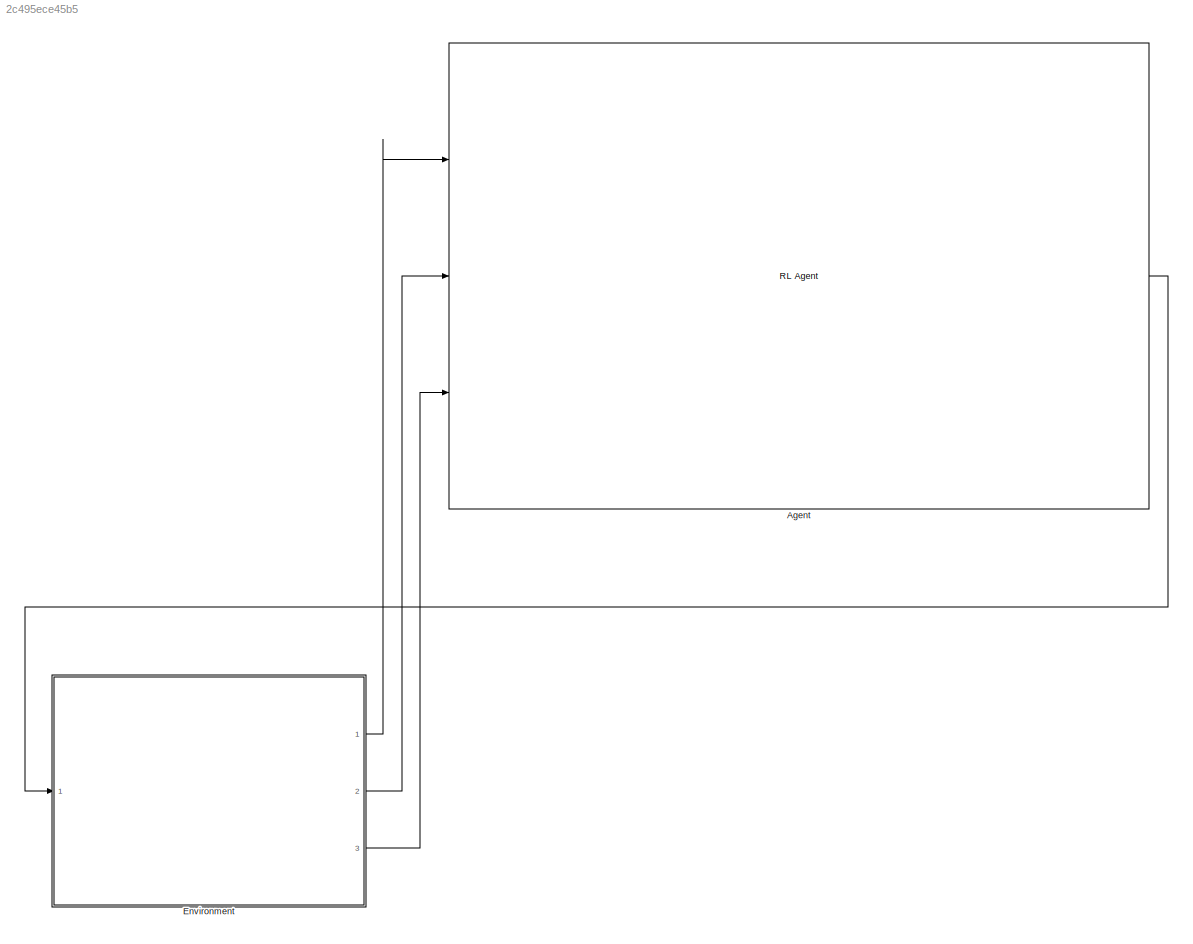
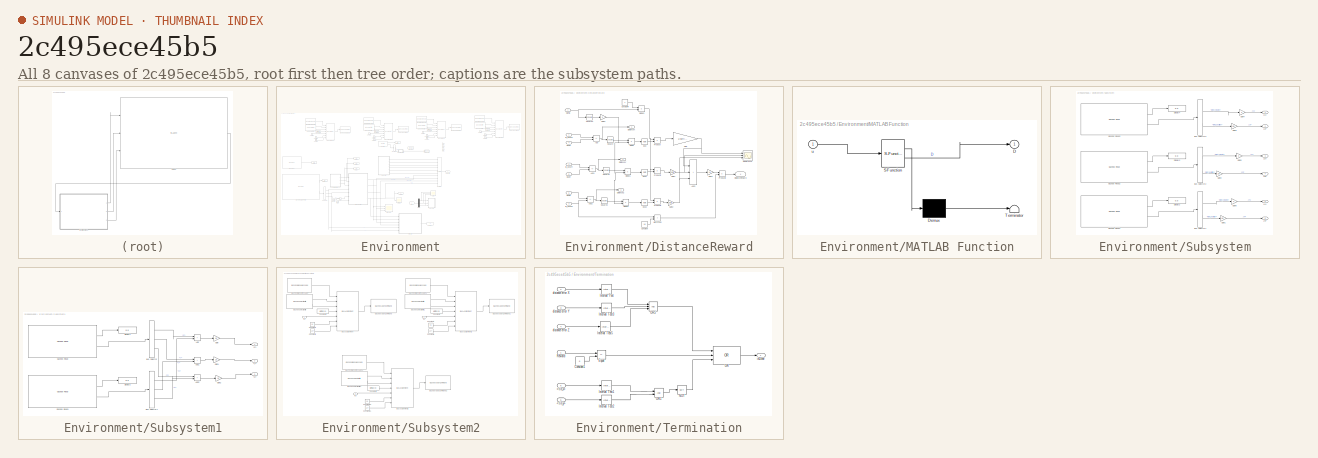
[diagram: thumbnail index - all 8 canvases of the model, root first then tree order]
MODEL slx_2c495ece45b5
KIND model
CONFIG AbsTol = auto
CONFIG EnableMultiTasking = off
CONFIG FixedStep = auto
CONFIG MaxStep = auto
CONFIG MinStep = auto
CONFIG RelTol = 1e-3
CONFIG SampleTimeConstraint = Unconstrained
CONFIG SolverName = VariableStepAuto
CONFIG StartTime = 0.0
CONFIG StopTime = inf
BLOCK [Reference] Agent  REF=rllib/RL Agent
  Ports = [3, 1]
  SourceBlock = rllib/RL Agent
  SourceProductBaseCode = RL
  SourceType = RL Agent
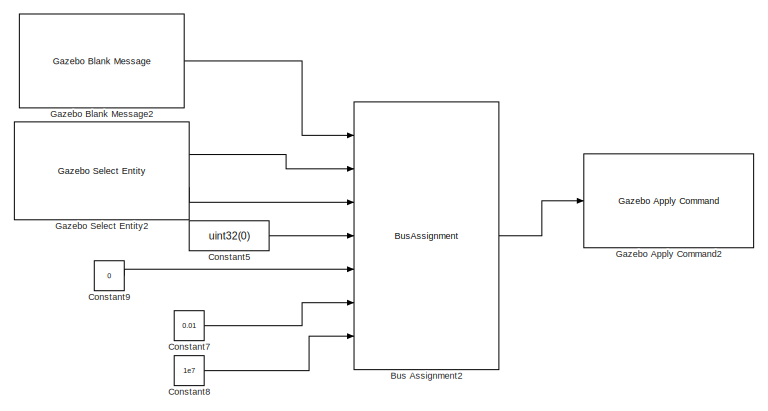
[diagram: Environment - part 1/7, top right region]
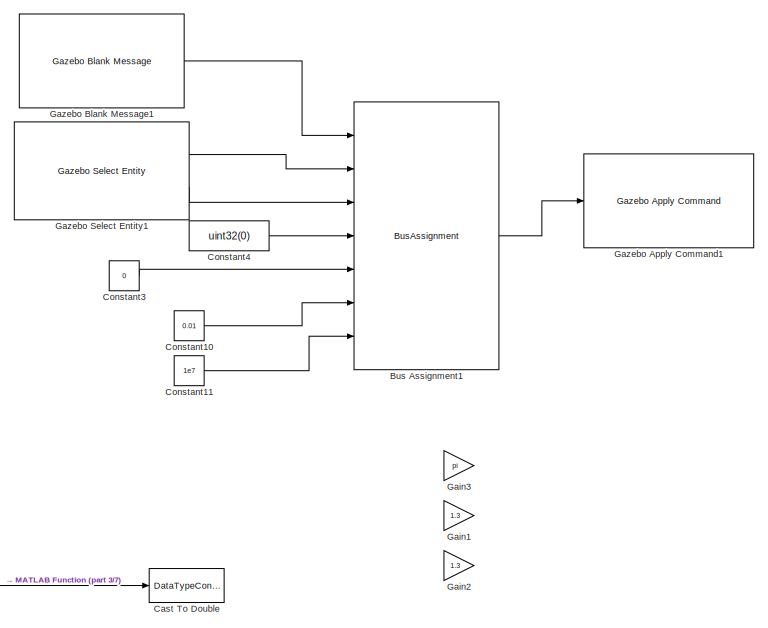
[diagram: Environment - part 2/7, top center region]
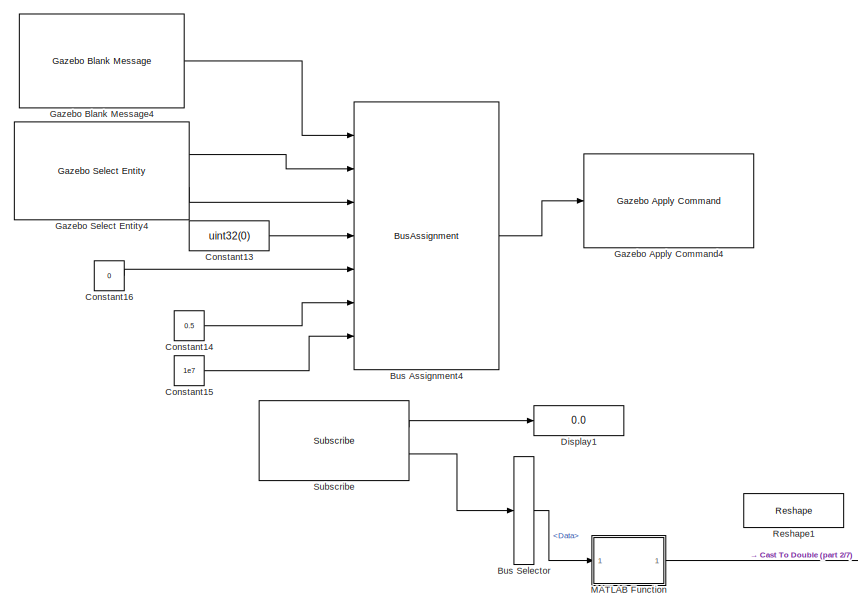
[diagram: Environment - part 3/7, top center region]
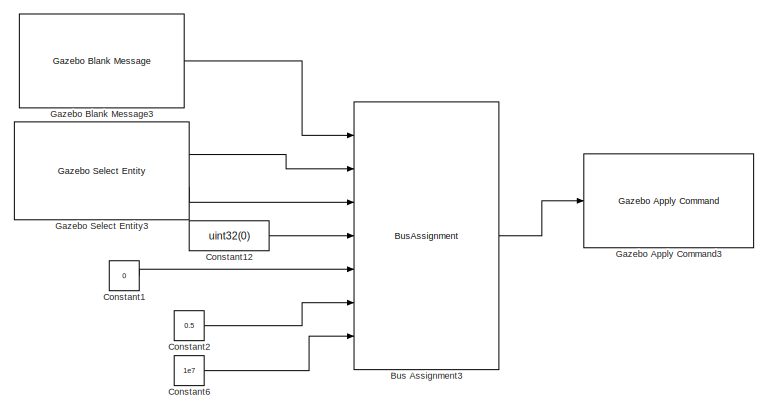
[diagram: Environment - part 4/7, top left region]
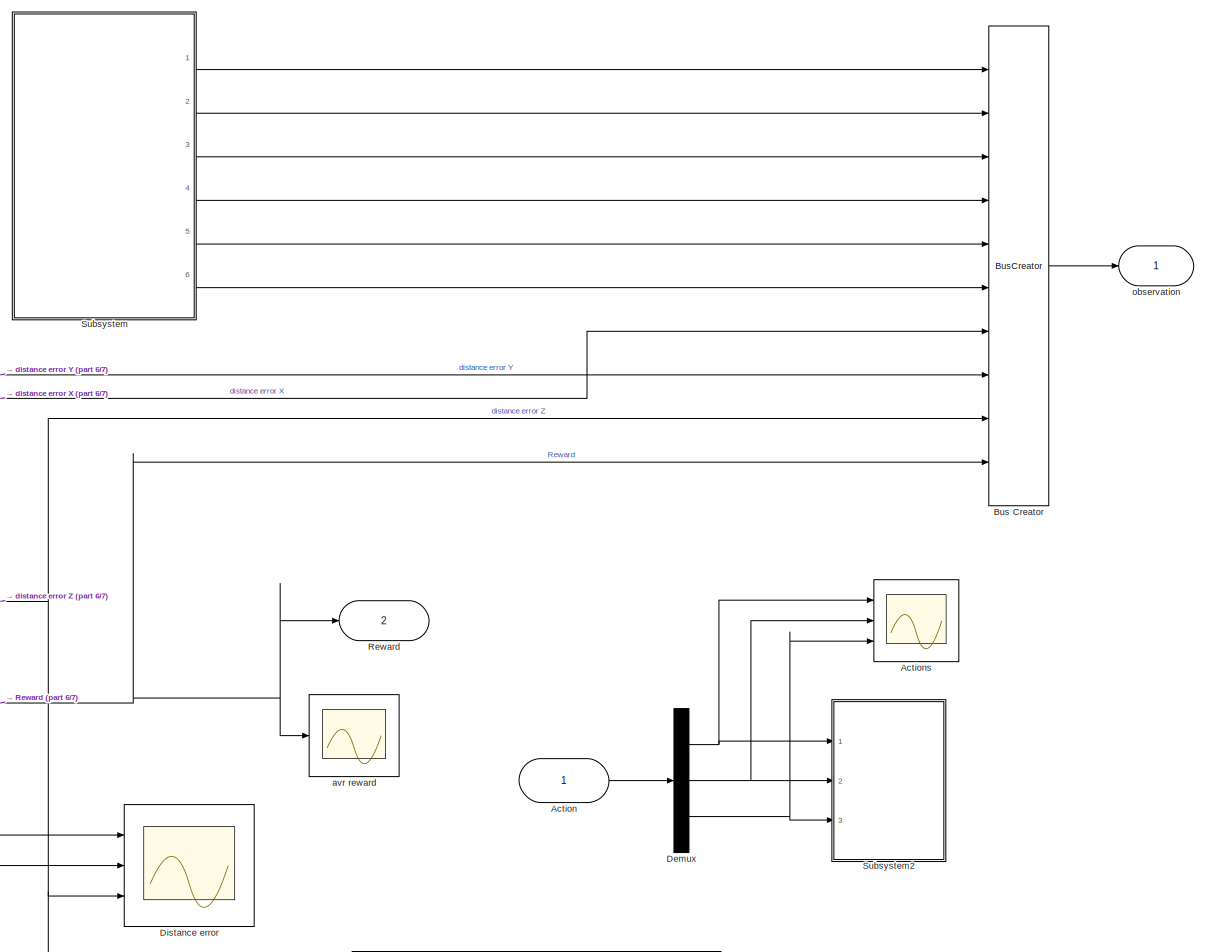
[diagram: Environment - part 5/7, central region]
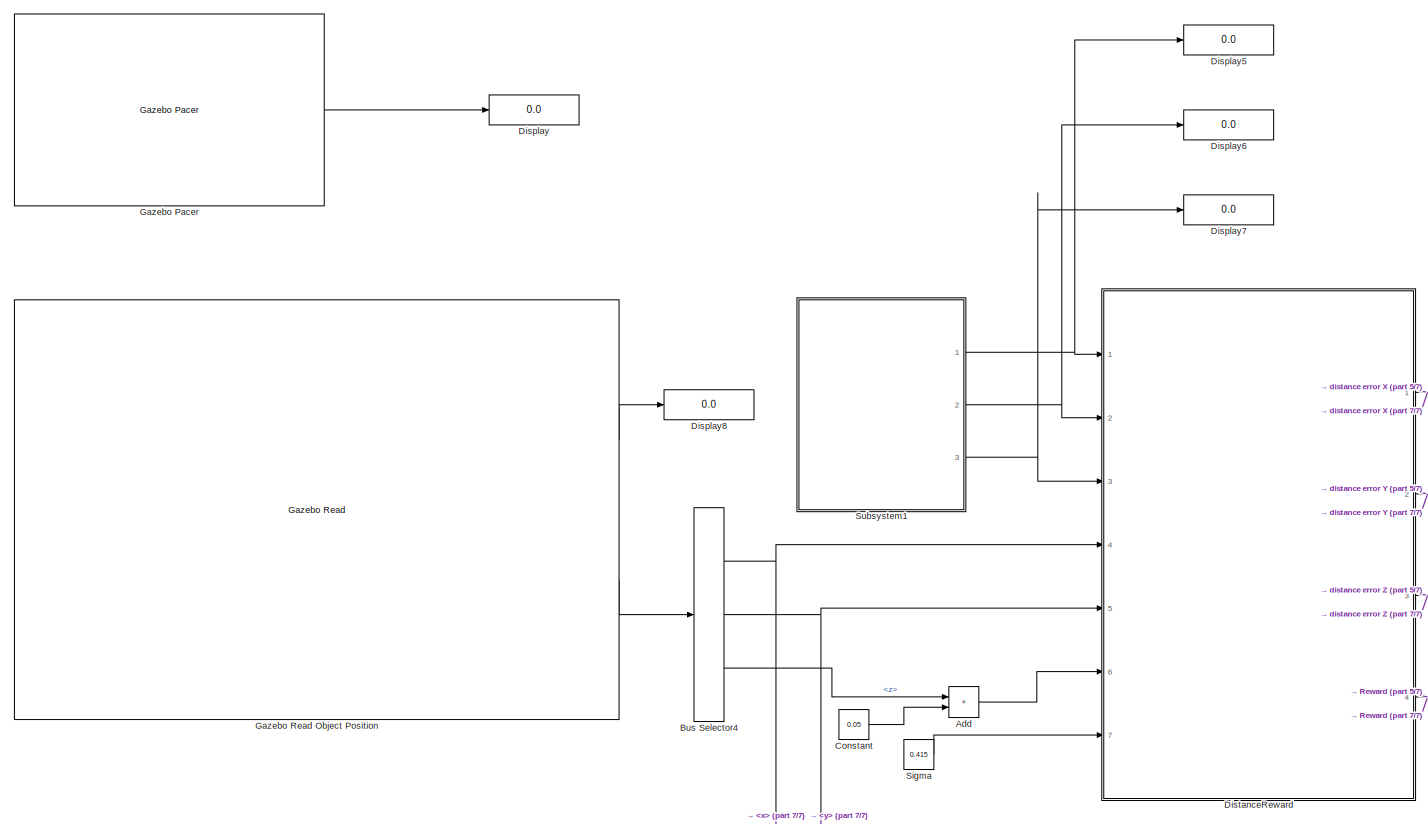
[diagram: Environment - part 6/7, middle left region]
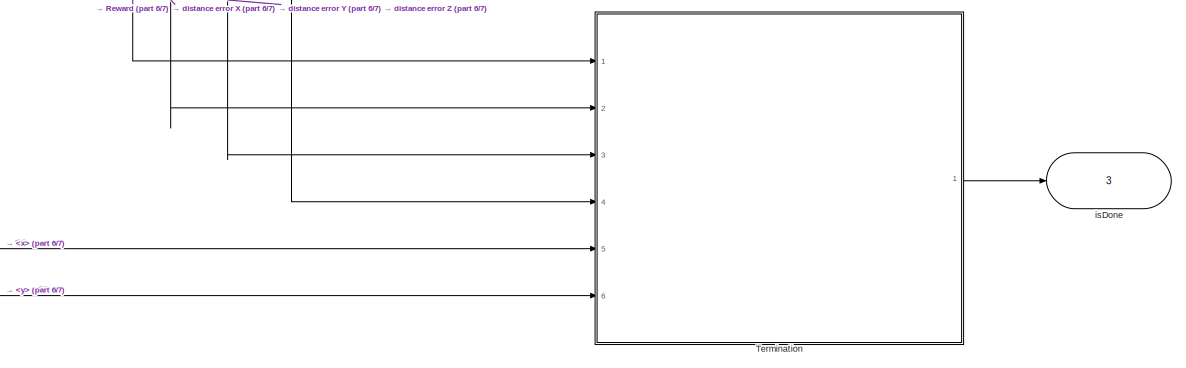
[diagram: Environment - part 7/7, bottom center region]
BLOCK [SubSystem] Environment
  Ports = [1, 3]
  RequestExecContextInheritance = off
BLOCK [Inport] Environment/Action
BLOCK [Scope] Environment/Actions
  Floating = off
  NumInputPorts = 3
  Ports = [3]
  ScopeSpecificationString = Simulink.scopes.TimeScopeBlockCfg('CurrentConfiguration', extmgr.ConfigurationSet(extmgr.Configuration('Core','General UI',true),extmgr.Configuration('Core','Source UI',true),extmgr.Configuration('Sources','WiredSimulink',true,'DataLoggingVariableName','ScopeData1'),extmgr.Configuration('Visuals','Time Domain',true,'SerializedDisplays',{struct('MinYLimReal','-3','MaxYLimReal','3','YLabelReal','','...<+1492ch>
BLOCK [Sum] Environment/Add
  IconShape = rectangular
  Ports = [2, 1]
BLOCK [BusAssignment] Environment/Bus Assignment1
  AssignedSignals = model_name,joint_name,index,position,duration.seconds,duration.nano_seconds
  Ports = [7, 1]
BLOCK [BusAssignment] Environment/Bus Assignment2
  AssignedSignals = model_name,joint_name,index,position,duration.seconds,duration.nano_seconds
  Ports = [7, 1]
BLOCK [BusAssignment] Environment/Bus Assignment3
  AssignedSignals = model_name,joint_name,index,velocity,duration.seconds,duration.nano_seconds
  Ports = [7, 1]
BLOCK [BusAssignment] Environment/Bus Assignment4
  AssignedSignals = model_name,joint_name,index,velocity,duration.seconds,duration.nano_seconds
  Ports = [7, 1]
BLOCK [BusCreator] Environment/Bus Creator
  DisplayOption = bar
  InheritFromInputs = on
  Inputs = 10
  Ports = [10, 1]
BLOCK [BusSelector] Environment/Bus Selector
  Commented = on
  OutputSignals = Data
  Ports = [1, 1]
BLOCK [BusSelector] Environment/Bus Selector4
  OutputSignals = position.x,position.y,position.z
  Ports = [1, 3]
BLOCK [DataTypeConversion] Environment/Cast To Double
  Commented = on
  OutDataTypeStr = double
  RndMeth = Floor
  SaturateOnIntegerOverflow = off
BLOCK [Constant] Environment/Constant
  Value = 0.05
BLOCK [Constant] Environment/Constant1
  Value = 0
BLOCK [Constant] Environment/Constant10
  Value = 0.01
BLOCK [Constant] Environment/Constant11
  Value = 1e7
BLOCK [Constant] Environment/Constant12
  Value = uint32(0)
BLOCK [Constant] Environment/Constant13
  Value = uint32(0)
BLOCK [Constant] Environment/Constant14
  Value = 0.5
BLOCK [Constant] Environment/Constant15
  Value = 1e7
BLOCK [Constant] Environment/Constant16
  Value = 0
BLOCK [Constant] Environment/Constant2
  Value = 0.5
BLOCK [Constant] Environment/Constant3
  Value = 0
BLOCK [Constant] Environment/Constant4
  Value = uint32(0)
BLOCK [Constant] Environment/Constant5
  Value = uint32(0)
BLOCK [Constant] Environment/Constant6
  Value = 1e7
BLOCK [Constant] Environment/Constant7
  Value = 0.01
BLOCK [Constant] Environment/Constant8
  Value = 1e7
BLOCK [Constant] Environment/Constant9
  Value = 0
BLOCK [Demux] Environment/Demux
  Outputs = 3
  Ports = [1, 3]
BLOCK [Display] Environment/Display
  Decimation = 1
  Ports = [1]
BLOCK [Display] Environment/Display1
  Commented = on
  Decimation = 1
  Ports = [1]
BLOCK [Display] Environment/Display5
  Decimation = 1
  Ports = [1]
BLOCK [Display] Environment/Display6
  Decimation = 1
  Ports = [1]
BLOCK [Display] Environment/Display7
  Decimation = 1
  Ports = [1]
BLOCK [Display] Environment/Display8
  Decimation = 1
  Ports = [1]
BLOCK [Scope] Environment/Distance error
  Floating = off
  NumInputPorts = 3
  Ports = [3]
  ScopeSpecificationString = Simulink.scopes.TimeScopeBlockCfg('CurrentConfiguration', extmgr.ConfigurationSet(extmgr.Configuration('Core','General UI',true),extmgr.Configuration('Core','Source UI',true),extmgr.Configuration('Sources','WiredSimulink',true),extmgr.Configuration('Visuals','Time Domain',true,'SerializedDisplays',{struct('MinYLimReal','-1.3','MaxYLimReal','1.2','YLabelReal','','MinYLimMag','0.00000','MaxYLimMag',...<+1374ch>
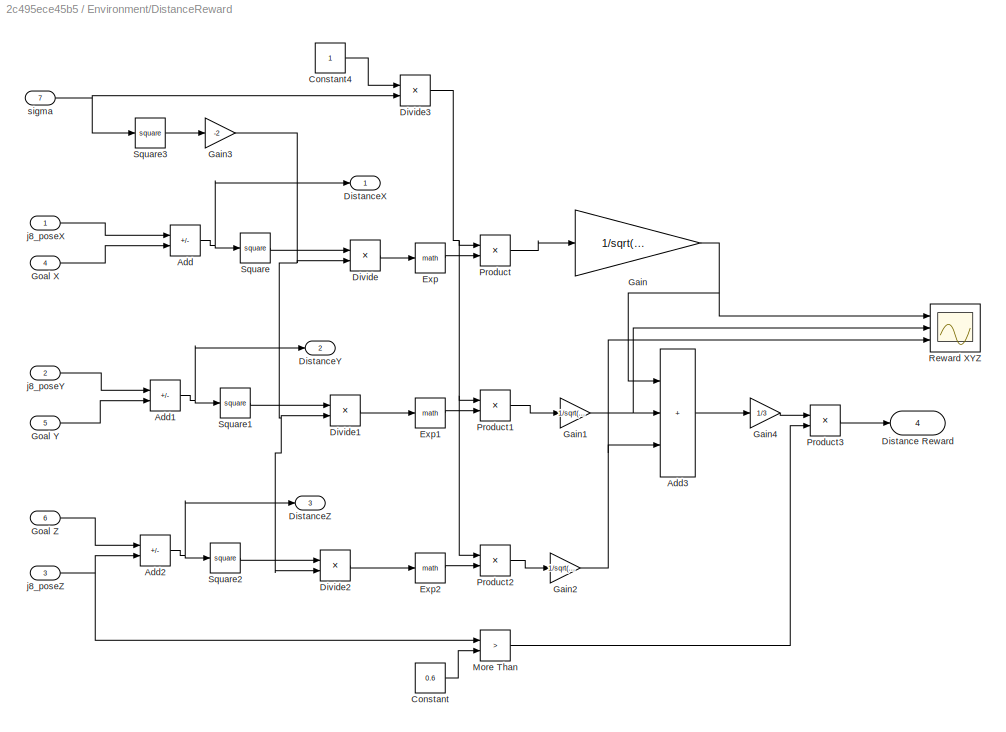
BLOCK [SubSystem] Environment/DistanceReward
  Ports = [7, 4]
  RequestExecContextInheritance = off
BLOCK [Sum] Environment/DistanceReward/Add
  IconShape = rectangular
  Inputs = +-
  Ports = [2, 1]
BLOCK [Sum] Environment/DistanceReward/Add1
  IconShape = rectangular
  Inputs = +-
  Ports = [2, 1]
BLOCK [Sum] Environment/DistanceReward/Add2
  IconShape = rectangular
  Inputs = +-
  Ports = [2, 1]
BLOCK [Sum] Environment/DistanceReward/Add3
  IconShape = rectangular
  Inputs = +++
  Ports = [3, 1]
BLOCK [Constant] Environment/DistanceReward/Constant
  Value = 0.6
BLOCK [Constant] Environment/DistanceReward/Constant4
BLOCK [Outport] Environment/DistanceReward/Distance Reward
  Port = 4
BLOCK [Outport] Environment/DistanceReward/DistanceX
BLOCK [Outport] Environment/DistanceReward/DistanceY
  Port = 2
BLOCK [Outport] Environment/DistanceReward/DistanceZ
  Port = 3
BLOCK [Product] Environment/DistanceReward/Divide
  Inputs = */
  Ports = [2, 1]
BLOCK [Product] Environment/DistanceReward/Divide1
  Inputs = */
  Ports = [2, 1]
BLOCK [Product] Environment/DistanceReward/Divide2
  Inputs = */
  Ports = [2, 1]
BLOCK [Product] Environment/DistanceReward/Divide3
  Inputs = */
  Ports = [2, 1]
BLOCK [Math] Environment/DistanceReward/Exp
  Ports = [1, 1]
BLOCK [Math] Environment/DistanceReward/Exp1
  Ports = [1, 1]
BLOCK [Math] Environment/DistanceReward/Exp2
  Ports = [1, 1]
BLOCK [Gain] Environment/DistanceReward/Gain
  Gain = 1/sqrt(2*pi)
BLOCK [Gain] Environment/DistanceReward/Gain1
  Gain = 1/sqrt(2*pi)
BLOCK [Gain] Environment/DistanceReward/Gain2
  Gain = 1/sqrt(2*pi)
BLOCK [Gain] Environment/DistanceReward/Gain3
  Gain = -2
BLOCK [Gain] Environment/DistanceReward/Gain4
  Gain = 1/3
BLOCK [Inport] Environment/DistanceReward/Goal X
  Port = 4
BLOCK [Inport] Environment/DistanceReward/Goal Y
  Port = 5
BLOCK [Inport] Environment/DistanceReward/Goal Z
  Port = 6
BLOCK [RelationalOperator] Environment/DistanceReward/More Than
  InputSameDT = off
  Operator = >
  OutDataTypeStr = boolean
  Ports = [2, 1]
  RndMeth = Simplest
BLOCK [Product] Environment/DistanceReward/Product
  Ports = [2, 1]
BLOCK [Product] Environment/DistanceReward/Product1
  Ports = [2, 1]
BLOCK [Product] Environment/DistanceReward/Product2
  Ports = [2, 1]
BLOCK [Product] Environment/DistanceReward/Product3
  Ports = [2, 1]
BLOCK [Scope] Environment/DistanceReward/Reward XYZ
  Floating = off
  NumInputPorts = 3
  Ports = [3]
  ScopeSpecificationString = Simulink.scopes.TimeScopeBlockCfg('CurrentConfiguration', extmgr.ConfigurationSet(extmgr.Configuration('Core','General UI',true),extmgr.Configuration('Core','Source UI',true),extmgr.Configuration('Sources','WiredSimulink',true,'DataLoggingVariableName','ScopeData1'),extmgr.Configuration('Visuals','Time Domain',true,'SerializedDisplays',{struct('MinYLimReal','0','MaxYLimReal','1.1','YLabelReal','',...<+1386ch>
BLOCK [Math] Environment/DistanceReward/Square
  Operator = square
  Ports = [1, 1]
BLOCK [Math] Environment/DistanceReward/Square1
  Operator = square
  Ports = [1, 1]
BLOCK [Math] Environment/DistanceReward/Square2
  Operator = square
  Ports = [1, 1]
BLOCK [Math] Environment/DistanceReward/Square3
  Operator = square
  Ports = [1, 1]
BLOCK [Inport] Environment/DistanceReward/j8_poseX
BLOCK [Inport] Environment/DistanceReward/j8_poseY
  Port = 2
BLOCK [Inport] Environment/DistanceReward/j8_poseZ
  Port = 3
BLOCK [Inport] Environment/DistanceReward/sigma
  Port = 7
BLOCK [Gain] Environment/Gain1
  Commented = on
  Gain = 1.3
BLOCK [Gain] Environment/Gain2
  Commented = on
  Gain = 1.3
BLOCK [Gain] Environment/Gain3
  Commented = on
  Gain = pi
BLOCK [Reference] Environment/Gazebo Apply Command1  REF=robotgazebolib/Gazebo Apply Command
  Ports = [1]
  SourceBlock = robotgazebolib/Gazebo Apply Command
  SourceProductBaseCode = RO
  SourceType = Gazebo Apply Command
BLOCK [Reference] Environment/Gazebo Apply Command2  REF=robotgazebolib/Gazebo Apply Command
  Ports = [1]
  SourceBlock = robotgazebolib/Gazebo Apply Command
  SourceProductBaseCode = RO
  SourceType = Gazebo Apply Command
BLOCK [Reference] Environment/Gazebo Apply Command3  REF=robotgazebolib/Gazebo Apply Command
  Ports = [1]
  SourceBlock = robotgazebolib/Gazebo Apply Command
  SourceProductBaseCode = RO
  SourceType = Gazebo Apply Command
BLOCK [Reference] Environment/Gazebo Apply Command4  REF=robotgazebolib/Gazebo Apply Command
  Ports = [1]
  SourceBlock = robotgazebolib/Gazebo Apply Command
  SourceProductBaseCode = RO
  SourceType = Gazebo Apply Command
BLOCK [Reference] Environment/Gazebo Blank Message1  REF=robotgazebolib/Gazebo Blank Message
  Ports = [0, 1]
  SourceBlock = robotgazebolib/Gazebo Blank Message
  SourceProductBaseCode = RO
  SourceType = Gazebo Blank Message
BLOCK [Reference] Environment/Gazebo Blank Message2  REF=robotgazebolib/Gazebo Blank Message
  Ports = [0, 1]
  SourceBlock = robotgazebolib/Gazebo Blank Message
  SourceProductBaseCode = RO
  SourceType = Gazebo Blank Message
BLOCK [Reference] Environment/Gazebo Blank Message3  REF=robotgazebolib/Gazebo Blank Message
  Ports = [0, 1]
  SourceBlock = robotgazebolib/Gazebo Blank Message
  SourceProductBaseCode = RO
  SourceType = Gazebo Blank Message
BLOCK [Reference] Environment/Gazebo Blank Message4  REF=robotgazebolib/Gazebo Blank Message
  Ports = [0, 1]
  SourceBlock = robotgazebolib/Gazebo Blank Message
  SourceProductBaseCode = RO
  SourceType = Gazebo Blank Message
BLOCK [Reference] Environment/Gazebo Pacer  REF=robotgazebolib/Gazebo Pacer
  Ports = [0, 1]
  SourceBlock = robotgazebolib/Gazebo Pacer
  SourceProductBaseCode = RO
  SourceType = Gazebo Pacer
BLOCK [Reference] Environment/Gazebo Read Object Position  REF=robotgazebolib/Gazebo Read
  Ports = [0, 2]
  SourceBlock = robotgazebolib/Gazebo Read
  SourceProductBaseCode = RO
  SourceType = Gazebo Read
BLOCK [Reference] Environment/Gazebo Select Entity1  REF=robotgazebolib/Gazebo Select Entity
  Ports = [0, 2]
  SourceBlock = robotgazebolib/Gazebo Select Entity
  SourceProductBaseCode = RO
  SourceType = Gazebo Select Entity
BLOCK [Reference] Environment/Gazebo Select Entity2  REF=robotgazebolib/Gazebo Select Entity
  Ports = [0, 2]
  SourceBlock = robotgazebolib/Gazebo Select Entity
  SourceProductBaseCode = RO
  SourceType = Gazebo Select Entity
BLOCK [Reference] Environment/Gazebo Select Entity3  REF=robotgazebolib/Gazebo Select Entity
  Ports = [0, 2]
  SourceBlock = robotgazebolib/Gazebo Select Entity
  SourceProductBaseCode = RO
  SourceType = Gazebo Select Entity
BLOCK [Reference] Environment/Gazebo Select Entity4  REF=robotgazebolib/Gazebo Select Entity
  Ports = [0, 2]
  SourceBlock = robotgazebolib/Gazebo Select Entity
  SourceProductBaseCode = RO
  SourceType = Gazebo Select Entity
BLOCK [SubSystem] Environment/MATLAB Function
  Commented = on
  ErrorFcn = Stateflow.Translate.translate
  PermitHierarchicalResolution = ExplicitOnly
  Ports = [1, 1]
  RequestExecContextInheritance = off
  SFBlockType = MATLAB Function
  TreatAsAtomicUnit = on
BLOCK [Demux] Environment/MATLAB Function/ Demux 
  Outputs = 1
  Ports = [1, 1]
BLOCK [S-Function] Environment/MATLAB Function/ SFunction 
  EnableBusSupport = on
  FunctionName = sf_sfun
  PortCounts = [1 2]
  Ports = [1, 2]
  SFcnIsStateOwnerBlock = off
  SFunctionDeploymentMode = off
  Tag = Stateflow S-Function 2
BLOCK [Terminator] Environment/MATLAB Function/ Terminator 
BLOCK [Outport] Environment/MATLAB Function/D
BLOCK [Inport] Environment/MATLAB Function/u
BLOCK [Reshape] Environment/Reshape1
  Commented = on
  OutputDimensionality = Customize
  OutputDimensions = [10000,1]
  Ports = [1, 1]
BLOCK [Outport] Environment/Reward
  Port = 2
BLOCK [Constant] Environment/Sigma
  Value = 0.415
BLOCK [Reference] Environment/Subscribe  REF=robotlib/Subscribe
  Commented = on
  Ports = [0, 2]
  SourceBlock = robotlib/Subscribe
  SourceProductBaseCode = RR
  SourceType = ROS Subscribe
BLOCK [SubSystem] Environment/Subsystem
  Ports = [0, 6]
  RequestExecContextInheritance = off
BLOCK [BusSelector] Environment/Subsystem/Bus Selector1
  OutputSignals = joint_velocity,joint_position
  Ports = [1, 2]
BLOCK [BusSelector] Environment/Subsystem/Bus Selector2
  OutputSignals = joint_velocity,joint_position
  Ports = [1, 2]
BLOCK [BusSelector] Environment/Subsystem/Bus Selector3
  OutputSignals = joint_velocity,joint_position
  Ports = [1, 2]
BLOCK [Display] Environment/Subsystem/Display2
  Decimation = 1
  Ports = [1]
BLOCK [Display] Environment/Subsystem/Display3
  Decimation = 1
  Ports = [1]
BLOCK [Display] Environment/Subsystem/Display4
  Decimation = 1
  Ports = [1]
BLOCK [Gain] Environment/Subsystem/Gain1
  Gain = 1/pi
BLOCK [Gain] Environment/Subsystem/Gain2
  Gain = 1/pi
BLOCK [Gain] Environment/Subsystem/Gain3
  Gain = 1/pi
BLOCK [Gain] Environment/Subsystem/Gain4
BLOCK [Gain] Environment/Subsystem/Gain5
BLOCK [Gain] Environment/Subsystem/Gain6
BLOCK [Reference] Environment/Subsystem/Gazebo Read1  REF=robotgazebolib/Gazebo Read
  Ports = [0, 2]
  SourceBlock = robotgazebolib/Gazebo Read
  SourceProductBaseCode = RO
  SourceType = Gazebo Read
BLOCK [Reference] Environment/Subsystem/Gazebo Read2  REF=robotgazebolib/Gazebo Read
  Ports = [0, 2]
  SourceBlock = robotgazebolib/Gazebo Read
  SourceProductBaseCode = RO
  SourceType = Gazebo Read
BLOCK [Reference] Environment/Subsystem/Gazebo Read3  REF=robotgazebolib/Gazebo Read
  Ports = [0, 2]
  SourceBlock = robotgazebolib/Gazebo Read
  SourceProductBaseCode = RO
  SourceType = Gazebo Read
BLOCK [Outport] Environment/Subsystem/J1P
  Port = 2
BLOCK [Outport] Environment/Subsystem/J1V
BLOCK [Outport] Environment/Subsystem/J2P
  Port = 4
BLOCK [Outport] Environment/Subsystem/J2V
  Port = 3
BLOCK [Outport] Environment/Subsystem/J4P
  Port = 6
BLOCK [Outport] Environment/Subsystem/J4V
  Port = 5
BLOCK [SubSystem] Environment/Subsystem1
  Ports = [0, 3]
  RequestExecContextInheritance = off
BLOCK [Outport] Environment/Subsystem1/<x>
BLOCK [Outport] Environment/Subsystem1/<y>
  Port = 2
BLOCK [Outport] Environment/Subsystem1/<z>
  Port = 3
BLOCK [Sum] Environment/Subsystem1/Add
  IconShape = rectangular
  Ports = [2, 1]
BLOCK [Sum] Environment/Subsystem1/Add1
  IconShape = rectangular
  Ports = [2, 1]
BLOCK [Sum] Environment/Subsystem1/Add2
  IconShape = rectangular
  Ports = [2, 1]
BLOCK [BusSelector] Environment/Subsystem1/Bus Selector
  OutputSignals = world_pose.position.x,world_pose.position.y,world_pose.position.z
  Ports = [1, 3]
BLOCK [BusSelector] Environment/Subsystem1/Bus Selector1
  OutputSignals = world_pose.position.x,world_pose.position.y,world_pose.position.z
  Ports = [1, 3]
BLOCK [Display] Environment/Subsystem1/Display1
  Decimation = 1
  Ports = [1]
BLOCK [Display] Environment/Subsystem1/Display2
  Decimation = 1
  Ports = [1]
BLOCK [Gain] Environment/Subsystem1/Gain
  Gain = 1/2
BLOCK [Gain] Environment/Subsystem1/Gain1
  Gain = 1/2
BLOCK [Gain] Environment/Subsystem1/Gain2
  Gain = 1/2
BLOCK [Reference] Environment/Subsystem1/Gazebo Read  REF=robotgazebolib/Gazebo Read
  Ports = [0, 2]
  SourceBlock = robotgazebolib/Gazebo Read
  SourceProductBaseCode = RO
  SourceType = Gazebo Read
BLOCK [Reference] Environment/Subsystem1/Gazebo Read1  REF=robotgazebolib/Gazebo Read
  Ports = [0, 2]
  SourceBlock = robotgazebolib/Gazebo Read
  SourceProductBaseCode = RO
  SourceType = Gazebo Read
BLOCK [SubSystem] Environment/Subsystem2
  Ports = [3]
  RequestExecContextInheritance = off
BLOCK [BusAssignment] Environment/Subsystem2/Bus Assignment
  AssignedSignals = model_name,joint_name,index,velocity,duration.seconds,duration.nano_seconds
  Ports = [7, 1]
BLOCK [BusAssignment] Environment/Subsystem2/Bus Assignment1
  AssignedSignals = model_name,joint_name,index,velocity,duration.seconds,duration.nano_seconds
  Ports = [7, 1]
BLOCK [BusAssignment] Environment/Subsystem2/Bus Assignment2
  AssignedSignals = model_name,joint_name,index,velocity,duration.seconds,duration.nano_seconds
  Ports = [7, 1]
BLOCK [Constant] Environment/Subsystem2/Constant1
  Value = uint32(0)
BLOCK [Constant] Environment/Subsystem2/Constant10
  Value = 0.5
BLOCK [Constant] Environment/Subsystem2/Constant11
  Value = 1e7
BLOCK [Constant] Environment/Subsystem2/Constant3
  Value = uint32(0)
BLOCK [Constant] Environment/Subsystem2/Constant4
  Value = 0.5
BLOCK [Constant] Environment/Subsystem2/Constant5
  Value = 1e7
BLOCK [Constant] Environment/Subsystem2/Constant7
  Value = 0.5
BLOCK [Constant] Environment/Subsystem2/Constant8
  Value = 1e7
BLOCK [Constant] Environment/Subsystem2/Constant9
  Value = uint32(0)
BLOCK [Reference] Environment/Subsystem2/Gazebo Apply Command  REF=robotgazebolib/Gazebo Apply Command
  Ports = [1]
  SourceBlock = robotgazebolib/Gazebo Apply Command
  SourceProductBaseCode = RO
  SourceType = Gazebo Apply Command
BLOCK [Reference] Environment/Subsystem2/Gazebo Apply Command1  REF=robotgazebolib/Gazebo Apply Command
  Ports = [1]
  SourceBlock = robotgazebolib/Gazebo Apply Command
  SourceProductBaseCode = RO
  SourceType = Gazebo Apply Command
BLOCK [Reference] Environment/Subsystem2/Gazebo Apply Command2  REF=robotgazebolib/Gazebo Apply Command
  Ports = [1]
  SourceBlock = robotgazebolib/Gazebo Apply Command
  SourceProductBaseCode = RO
  SourceType = Gazebo Apply Command
BLOCK [Reference] Environment/Subsystem2/Gazebo Blank Message  REF=robotgazebolib/Gazebo Blank Message
  Ports = [0, 1]
  SourceBlock = robotgazebolib/Gazebo Blank Message
  SourceProductBaseCode = RO
  SourceType = Gazebo Blank Message
BLOCK [Reference] Environment/Subsystem2/Gazebo Blank Message1  REF=robotgazebolib/Gazebo Blank Message
  Ports = [0, 1]
  SourceBlock = robotgazebolib/Gazebo Blank Message
  SourceProductBaseCode = RO
  SourceType = Gazebo Blank Message
BLOCK [Reference] Environment/Subsystem2/Gazebo Blank Message2  REF=robotgazebolib/Gazebo Blank Message
  Ports = [0, 1]
  SourceBlock = robotgazebolib/Gazebo Blank Message
  SourceProductBaseCode = RO
  SourceType = Gazebo Blank Message
BLOCK [Reference] Environment/Subsystem2/Gazebo Select Entity  REF=robotgazebolib/Gazebo Select Entity
  Ports = [0, 2]
  SourceBlock = robotgazebolib/Gazebo Select Entity
  SourceProductBaseCode = RO
  SourceType = Gazebo Select Entity
BLOCK [Reference] Environment/Subsystem2/Gazebo Select Entity1  REF=robotgazebolib/Gazebo Select Entity
  Ports = [0, 2]
  SourceBlock = robotgazebolib/Gazebo Select Entity
  SourceProductBaseCode = RO
  SourceType = Gazebo Select Entity
BLOCK [Reference] Environment/Subsystem2/Gazebo Select Entity2  REF=robotgazebolib/Gazebo Select Entity
  Ports = [0, 2]
  SourceBlock = robotgazebolib/Gazebo Select Entity
  SourceProductBaseCode = RO
  SourceType = Gazebo Select Entity
BLOCK [Inport] Environment/Subsystem2/In1
BLOCK [Inport] Environment/Subsystem2/In2
  Port = 2
BLOCK [Inport] Environment/Subsystem2/In3
  Port = 3
BLOCK [SubSystem] Environment/Termination
  Ports = [6, 1]
  RequestExecContextInheritance = off
BLOCK [Inport] Environment/Termination/<tin_x>
  Port = 5
BLOCK [Inport] Environment/Termination/<tin_y>
  Port = 6
BLOCK [Constant] Environment/Termination/Constant1
  Value = 0
BLOCK [RelationalOperator] Environment/Termination/Equal
  InputSameDT = off
  Operator = ==
  OutDataTypeStr = boolean
  Ports = [2, 1]
  RndMeth = Simplest
BLOCK [Reference] Environment/Termination/Interval Test  REF=simulink/Logic and Bit
Operations/Interval Test
  Ports = [1, 1]
  SourceBlock = simulink/Logic and Bit\nOperations/Interval Test
  SourceProductBaseCode = SL
  SourceType = Interval Test
BLOCK [Reference] Environment/Termination/Interval Test1  REF=simulink/Logic and Bit
Operations/Interval Test
  Ports = [1, 1]
  SourceBlock = simulink/Logic and Bit\nOperations/Interval Test
  SourceProductBaseCode = SL
  SourceType = Interval Test
BLOCK [Reference] Environment/Termination/Interval Test2  REF=simulink/Logic and Bit
Operations/Interval Test
  Ports = [1, 1]
  SourceBlock = simulink/Logic and Bit\nOperations/Interval Test
  SourceProductBaseCode = SL
  SourceType = Interval Test
BLOCK [Reference] Environment/Termination/Interval Test3  REF=simulink/Logic and Bit
Operations/Interval Test
  Ports = [1, 1]
  SourceBlock = simulink/Logic and Bit\nOperations/Interval Test
  SourceProductBaseCode = SL
  SourceType = Interval Test
BLOCK [Reference] Environment/Termination/Interval Test5  REF=simulink/Logic and Bit
Operations/Interval Test
  Ports = [1, 1]
  SourceBlock = simulink/Logic and Bit\nOperations/Interval Test
  SourceProductBaseCode = SL
  SourceType = Interval Test
BLOCK [Logic] Environment/Termination/NOT
  AllPortsSameDT = off
  IconShape = distinctive
  Operator = NOT
  OutDataTypeStr = boolean
  Ports = [1, 1]
BLOCK [Logic] Environment/Termination/OR
  AllPortsSameDT = off
  IconShape = distinctive
  Inputs = 3
  Operator = OR
  OutDataTypeStr = boolean
  Ports = [3, 1]
BLOCK [Logic] Environment/Termination/OR1
  AllPortsSameDT = off
  IconShape = distinctive
  OutDataTypeStr = boolean
  Ports = [2, 1]
BLOCK [Logic] Environment/Termination/OR5
  AllPortsSameDT = off
  IconShape = distinctive
  Inputs = 3
  OutDataTypeStr = boolean
  Ports = [3, 1]
BLOCK [Inport] Environment/Termination/Reward
BLOCK [Inport] Environment/Termination/distance error X
  Port = 2
BLOCK [Inport] Environment/Termination/distance error Y
  Port = 3
BLOCK [Inport] Environment/Termination/distance error Z
  Port = 4
BLOCK [Outport] Environment/Termination/isDone
  VectorParamsAs1DForOutWhenUnconnected = off
BLOCK [Scope] Environment/avr reward
  Floating = off
  NumInputPorts = 1
  Ports = [1]
  ScopeSpecificationString = Simulink.scopes.TimeScopeBlockCfg('CurrentConfiguration', extmgr.ConfigurationSet(extmgr.Configuration('Core','General UI',true),extmgr.Configuration('Core','Source UI',true),extmgr.Configuration('Sources','WiredSimulink',true,'DataLoggingVariableName','ScopeData1'),extmgr.Configuration('Visuals','Time Domain',true,'SerializedDisplays',{struct('MinYLimReal','0','MaxYLimReal','1.1','YLabelReal','',...<+1389ch>
BLOCK [Outport] Environment/isDone
  Port = 3
  VectorParamsAs1DForOutWhenUnconnected = off
BLOCK [Outport] Environment/observation
LINE Agent:1 -> Environment:1
LINE Environment/Action:1 -> Environment/Demux:1
LINE Environment/Add:1 -> Environment/DistanceReward:6
LINE Environment/Bus Assignment1:1 -> Environment/Gazebo Apply Command1:1
LINE Environment/Bus Assignment2:1 -> Environment/Gazebo Apply Command2:1
LINE Environment/Bus Assignment3:1 -> Environment/Gazebo Apply Command3:1
LINE Environment/Bus Assignment4:1 -> Environment/Gazebo Apply Command4:1
LINE Environment/Bus Creator:1 -> Environment/observation:1
NET Environment/Bus Selector4:1 -> Environment/DistanceReward:4, Environment/Termination:5
NET Environment/Bus Selector4:2 -> Environment/DistanceReward:5, Environment/Termination:6
LINE Environment/Bus Selector4:3 -> Environment/Add:1
LINE Environment/Bus Selector:1 -> Environment/MATLAB Function:1
LINE Environment/Constant10:1 -> Environment/Bus Assignment1:6
LINE Environment/Constant11:1 -> Environment/Bus Assignment1:7
LINE Environment/Constant12:1 -> Environment/Bus Assignment3:4
LINE Environment/Constant13:1 -> Environment/Bus Assignment4:4
LINE Environment/Constant14:1 -> Environment/Bus Assignment4:6
LINE Environment/Constant15:1 -> Environment/Bus Assignment4:7
LINE Environment/Constant16:1 -> Environment/Bus Assignment4:5
LINE Environment/Constant1:1 -> Environment/Bus Assignment3:5
LINE Environment/Constant2:1 -> Environment/Bus Assignment3:6
LINE Environment/Constant3:1 -> Environment/Bus Assignment1:5
LINE Environment/Constant4:1 -> Environment/Bus Assignment1:4
LINE Environment/Constant5:1 -> Environment/Bus Assignment2:4
LINE Environment/Constant6:1 -> Environment/Bus Assignment3:7
LINE Environment/Constant7:1 -> Environment/Bus Assignment2:6
LINE Environment/Constant8:1 -> Environment/Bus Assignment2:7
LINE Environment/Constant9:1 -> Environment/Bus Assignment2:5
LINE Environment/Constant:1 -> Environment/Add:2
NET Environment/Demux:1 -> Environment/Actions:1, Environment/Subsystem2:1
NET Environment/Demux:2 -> Environment/Actions:2, Environment/Subsystem2:2
NET Environment/Demux:3 -> Environment/Actions:3, Environment/Subsystem2:3
NET Environment/DistanceReward/Add1:1 -> Environment/DistanceReward/DistanceY:1, Environment/DistanceReward/Square1:1
NET Environment/DistanceReward/Add2:1 -> Environment/DistanceReward/DistanceZ:1, Environment/DistanceReward/Square2:1
LINE Environment/DistanceReward/Add3:1 -> Environment/DistanceReward/Gain4:1
NET Environment/DistanceReward/Add:1 -> Environment/DistanceReward/DistanceX:1, Environment/DistanceReward/Square:1
LINE Environment/DistanceReward/Constant4:1 -> Environment/DistanceReward/Divide3:1
LINE Environment/DistanceReward/Constant:1 -> Environment/DistanceReward/More Than:2
LINE Environment/DistanceReward/Divide1:1 -> Environment/DistanceReward/Exp1:1
LINE Environment/DistanceReward/Divide2:1 -> Environment/DistanceReward/Exp2:1
NET Environment/DistanceReward/Divide3:1 -> Environment/DistanceReward/Product1:1, Environment/DistanceReward/Product2:1, Environment/DistanceReward/Product:1
LINE Environment/DistanceReward/Divide:1 -> Environment/DistanceReward/Exp:1
LINE Environment/DistanceReward/Exp1:1 -> Environment/DistanceReward/Product1:2
LINE Environment/DistanceReward/Exp2:1 -> Environment/DistanceReward/Product2:2
LINE Environment/DistanceReward/Exp:1 -> Environment/DistanceReward/Product:2
NET Environment/DistanceReward/Gain1:1 -> Environment/DistanceReward/Add3:2, Environment/DistanceReward/Reward XYZ:2
NET Environment/DistanceReward/Gain2:1 -> Environment/DistanceReward/Add3:3, Environment/DistanceReward/Reward XYZ:3
NET Environment/DistanceReward/Gain3:1 -> Environment/DistanceReward/Divide1:2, Environment/DistanceReward/Divide2:2, Environment/DistanceReward/Divide:2
LINE Environment/DistanceReward/Gain4:1 -> Environment/DistanceReward/Product3:1
NET Environment/DistanceReward/Gain:1 -> Environment/DistanceReward/Add3:1, Environment/DistanceReward/Reward XYZ:1
LINE Environment/DistanceReward/Goal X:1 -> Environment/DistanceReward/Add:2
LINE Environment/DistanceReward/Goal Y:1 -> Environment/DistanceReward/Add1:2
LINE Environment/DistanceReward/Goal Z:1 -> Environment/DistanceReward/Add2:1
LINE Environment/DistanceReward/More Than:1 -> Environment/DistanceReward/Product3:2
LINE Environment/DistanceReward/Product1:1 -> Environment/DistanceReward/Gain1:1
LINE Environment/DistanceReward/Product2:1 -> Environment/DistanceReward/Gain2:1
LINE Environment/DistanceReward/Product3:1 -> Environment/DistanceReward/Distance Reward:1
LINE Environment/DistanceReward/Product:1 -> Environment/DistanceReward/Gain:1
LINE Environment/DistanceReward/Square1:1 -> Environment/DistanceReward/Divide1:1
LINE Environment/DistanceReward/Square2:1 -> Environment/DistanceReward/Divide2:1
LINE Environment/DistanceReward/Square3:1 -> Environment/DistanceReward/Gain3:1
LINE Environment/DistanceReward/Square:1 -> Environment/DistanceReward/Divide:1
LINE Environment/DistanceReward/j8_poseX:1 -> Environment/DistanceReward/Add:1
LINE Environment/DistanceReward/j8_poseY:1 -> Environment/DistanceReward/Add1:1
NET Environment/DistanceReward/j8_poseZ:1 -> Environment/DistanceReward/Add2:2, Environment/DistanceReward/More Than:1
NET Environment/DistanceReward/sigma:1 -> Environment/DistanceReward/Divide3:2, Environment/DistanceReward/Square3:1
NET Environment/DistanceReward:1 -> Environment/Bus Creator:7, Environment/Distance error:1, Environment/Termination:2
NET Environment/DistanceReward:2 -> Environment/Bus Creator:8, Environment/Distance error:2, Environment/Termination:3
NET Environment/DistanceReward:3 -> Environment/Bus Creator:9, Environment/Distance error:3, Environment/Termination:4
NET Environment/DistanceReward:4 -> Environment/Bus Creator:10, Environment/Reward:1, Environment/Termination:1, Environment/avr reward:1
LINE Environment/Gazebo Blank Message1:1 -> Environment/Bus Assignment1:1
LINE Environment/Gazebo Blank Message2:1 -> Environment/Bus Assignment2:1
LINE Environment/Gazebo Blank Message3:1 -> Environment/Bus Assignment3:1
LINE Environment/Gazebo Blank Message4:1 -> Environment/Bus Assignment4:1
LINE Environment/Gazebo Pacer:1 -> Environment/Display:1
LINE Environment/Gazebo Read Object Position:1 -> Environment/Display8:1
LINE Environment/Gazebo Read Object Position:2 -> Environment/Bus Selector4:1
LINE Environment/Gazebo Select Entity1:1 -> Environment/Bus Assignment1:2
LINE Environment/Gazebo Select Entity1:2 -> Environment/Bus Assignment1:3
LINE Environment/Gazebo Select Entity2:1 -> Environment/Bus Assignment2:2
LINE Environment/Gazebo Select Entity2:2 -> Environment/Bus Assignment2:3
LINE Environment/Gazebo Select Entity3:1 -> Environment/Bus Assignment3:2
LINE Environment/Gazebo Select Entity3:2 -> Environment/Bus Assignment3:3
LINE Environment/Gazebo Select Entity4:1 -> Environment/Bus Assignment4:2
LINE Environment/Gazebo Select Entity4:2 -> Environment/Bus Assignment4:3
LINE Environment/MATLAB Function:1 -> Environment/Cast To Double:1
LINE Environment/Sigma:1 -> Environment/DistanceReward:7
LINE Environment/Subscribe:1 -> Environment/Display1:1
LINE Environment/Subscribe:2 -> Environment/Bus Selector:1
LINE Environment/Subsystem/Bus Selector1:1 -> Environment/Subsystem/Gain6:1
LINE Environment/Subsystem/Bus Selector1:2 -> Environment/Subsystem/Gain1:1
LINE Environment/Subsystem/Bus Selector2:1 -> Environment/Subsystem/Gain5:1
LINE Environment/Subsystem/Bus Selector2:2 -> Environment/Subsystem/Gain2:1
LINE Environment/Subsystem/Bus Selector3:1 -> Environment/Subsystem/Gain4:1
LINE Environment/Subsystem/Bus Selector3:2 -> Environment/Subsystem/Gain3:1
LINE Environment/Subsystem/Gain1:1 -> Environment/Subsystem/J4P:1
LINE Environment/Subsystem/Gain2:1 -> Environment/Subsystem/J2P:1
LINE Environment/Subsystem/Gain3:1 -> Environment/Subsystem/J1P:1
LINE Environment/Subsystem/Gain4:1 -> Environment/Subsystem/J1V:1
LINE Environment/Subsystem/Gain5:1 -> Environment/Subsystem/J2V:1
LINE Environment/Subsystem/Gain6:1 -> Environment/Subsystem/J4V:1
LINE Environment/Subsystem/Gazebo Read1:1 -> Environment/Subsystem/Display2:1
LINE Environment/Subsystem/Gazebo Read1:2 -> Environment/Subsystem/Bus Selector1:1
LINE Environment/Subsystem/Gazebo Read2:1 -> Environment/Subsystem/Display3:1
LINE Environment/Subsystem/Gazebo Read2:2 -> Environment/Subsystem/Bus Selector2:1
LINE Environment/Subsystem/Gazebo Read3:1 -> Environment/Subsystem/Display4:1
LINE Environment/Subsystem/Gazebo Read3:2 -> Environment/Subsystem/Bus Selector3:1
LINE Environment/Subsystem1/Add1:1 -> Environment/Subsystem1/Gain1:1
LINE Environment/Subsystem1/Add2:1 -> Environment/Subsystem1/Gain2:1
LINE Environment/Subsystem1/Add:1 -> Environment/Subsystem1/Gain:1
LINE Environment/Subsystem1/Bus Selector1:1 -> Environment/Subsystem1/Add:2
LINE Environment/Subsystem1/Bus Selector1:2 -> Environment/Subsystem1/Add1:2
LINE Environment/Subsystem1/Bus Selector1:3 -> Environment/Subsystem1/Add2:2
LINE Environment/Subsystem1/Bus Selector:1 -> Environment/Subsystem1/Add:1
LINE Environment/Subsystem1/Bus Selector:2 -> Environment/Subsystem1/Add1:1
LINE Environment/Subsystem1/Bus Selector:3 -> Environment/Subsystem1/Add2:1
LINE Environment/Subsystem1/Gain1:1 -> Environment/Subsystem1/<y>:1
LINE Environment/Subsystem1/Gain2:1 -> Environment/Subsystem1/<z>:1
LINE Environment/Subsystem1/Gain:1 -> Environment/Subsystem1/<x>:1
LINE Environment/Subsystem1/Gazebo Read1:1 -> Environment/Subsystem1/Display2:1
LINE Environment/Subsystem1/Gazebo Read1:2 -> Environment/Subsystem1/Bus Selector1:1
LINE Environment/Subsystem1/Gazebo Read:1 -> Environment/Subsystem1/Display1:1
LINE Environment/Subsystem1/Gazebo Read:2 -> Environment/Subsystem1/Bus Selector:1
NET Environment/Subsystem1:1 -> Environment/Display5:1, Environment/DistanceReward:1
NET Environment/Subsystem1:2 -> Environment/Display6:1, Environment/DistanceReward:2
NET Environment/Subsystem1:3 -> Environment/Display7:1, Environment/DistanceReward:3
LINE Environment/Subsystem2/Bus Assignment1:1 -> Environment/Subsystem2/Gazebo Apply Command1:1
LINE Environment/Subsystem2/Bus Assignment2:1 -> Environment/Subsystem2/Gazebo Apply Command2:1
LINE Environment/Subsystem2/Bus Assignment:1 -> Environment/Subsystem2/Gazebo Apply Command:1
LINE Environment/Subsystem2/Constant10:1 -> Environment/Subsystem2/Bus Assignment2:6
LINE Environment/Subsystem2/Constant11:1 -> Environment/Subsystem2/Bus Assignment2:7
LINE Environment/Subsystem2/Constant1:1 -> Environment/Subsystem2/Bus Assignment1:4
LINE Environment/Subsystem2/Constant3:1 -> Environment/Subsystem2/Bus Assignment:4
LINE Environment/Subsystem2/Constant4:1 -> Environment/Subsystem2/Bus Assignment:6
LINE Environment/Subsystem2/Constant5:1 -> Environment/Subsystem2/Bus Assignment:7
LINE Environment/Subsystem2/Constant7:1 -> Environment/Subsystem2/Bus Assignment1:6
LINE Environment/Subsystem2/Constant8:1 -> Environment/Subsystem2/Bus Assignment1:7
LINE Environment/Subsystem2/Constant9:1 -> Environment/Subsystem2/Bus Assignment2:4
LINE Environment/Subsystem2/Gazebo Blank Message1:1 -> Environment/Subsystem2/Bus Assignment1:1
LINE Environment/Subsystem2/Gazebo Blank Message2:1 -> Environment/Subsystem2/Bus Assignment2:1
LINE Environment/Subsystem2/Gazebo Blank Message:1 -> Environment/Subsystem2/Bus Assignment:1
LINE Environment/Subsystem2/Gazebo Select Entity1:1 -> Environment/Subsystem2/Bus Assignment1:2
LINE Environment/Subsystem2/Gazebo Select Entity1:2 -> Environment/Subsystem2/Bus Assignment1:3
LINE Environment/Subsystem2/Gazebo Select Entity2:1 -> Environment/Subsystem2/Bus Assignment2:2
LINE Environment/Subsystem2/Gazebo Select Entity2:2 -> Environment/Subsystem2/Bus Assignment2:3
LINE Environment/Subsystem2/Gazebo Select Entity:1 -> Environment/Subsystem2/Bus Assignment:2
LINE Environment/Subsystem2/Gazebo Select Entity:2 -> Environment/Subsystem2/Bus Assignment:3
LINE Environment/Subsystem2/In1:1 -> Environment/Subsystem2/Bus Assignment:5
LINE Environment/Subsystem2/In2:1 -> Environment/Subsystem2/Bus Assignment1:5
LINE Environment/Subsystem2/In3:1 -> Environment/Subsystem2/Bus Assignment2:5
LINE Environment/Subsystem:1 -> Environment/Bus Creator:1
LINE Environment/Subsystem:2 -> Environment/Bus Creator:2
LINE Environment/Subsystem:3 -> Environment/Bus Creator:3
LINE Environment/Subsystem:4 -> Environment/Bus Creator:4
LINE Environment/Subsystem:5 -> Environment/Bus Creator:5
LINE Environment/Subsystem:6 -> Environment/Bus Creator:6
LINE Environment/Termination/<tin_x>:1 -> Environment/Termination/Interval Test1:1
LINE Environment/Termination/<tin_y>:1 -> Environment/Termination/Interval Test2:1
LINE Environment/Termination/Constant1:1 -> Environment/Termination/Equal:2
LINE Environment/Termination/Equal:1 -> Environment/Termination/OR:2
LINE Environment/Termination/Interval Test1:1 -> Environment/Termination/OR1:1
LINE Environment/Termination/Interval Test2:1 -> Environment/Termination/OR1:2
LINE Environment/Termination/Interval Test3:1 -> Environment/Termination/OR5:2
LINE Environment/Termination/Interval Test5:1 -> Environment/Termination/OR5:3
LINE Environment/Termination/Interval Test:1 -> Environment/Termination/OR5:1
LINE Environment/Termination/NOT:1 -> Environment/Termination/OR:3
LINE Environment/Termination/OR1:1 -> Environment/Termination/NOT:1
LINE Environment/Termination/OR5:1 -> Environment/Termination/OR:1
LINE Environment/Termination/OR:1 -> Environment/Termination/isDone:1
LINE Environment/Termination/Reward:1 -> Environment/Termination/Equal:1
LINE Environment/Termination/distance error X:1 -> Environment/Termination/Interval Test:1
LINE Environment/Termination/distance error Y:1 -> Environment/Termination/Interval Test3:1
LINE Environment/Termination/distance error Z:1 -> Environment/Termination/Interval Test5:1
LINE Environment/Termination:1 -> Environment/isDone:1
LINE Environment:1 -> Agent:1
LINE Environment:2 -> Agent:2
LINE Environment:3 -> Agent:3
note: NET lines group one-source signal fan-out (src -> all destinations, sorted); 1:1 wires keep LINE
CHART Environment/MATLAB Function states=1 transitions=1
  STATE_LABEL 'eML_blk_kernel()'
  STATE_LABEL "SCRIPT:\nfunction D = fcn(u)\n\nD = u(3:4:end);\n% D = reshape(Ds, 10000, 1)';\n\n"
CHART  states=0 transitions=0
